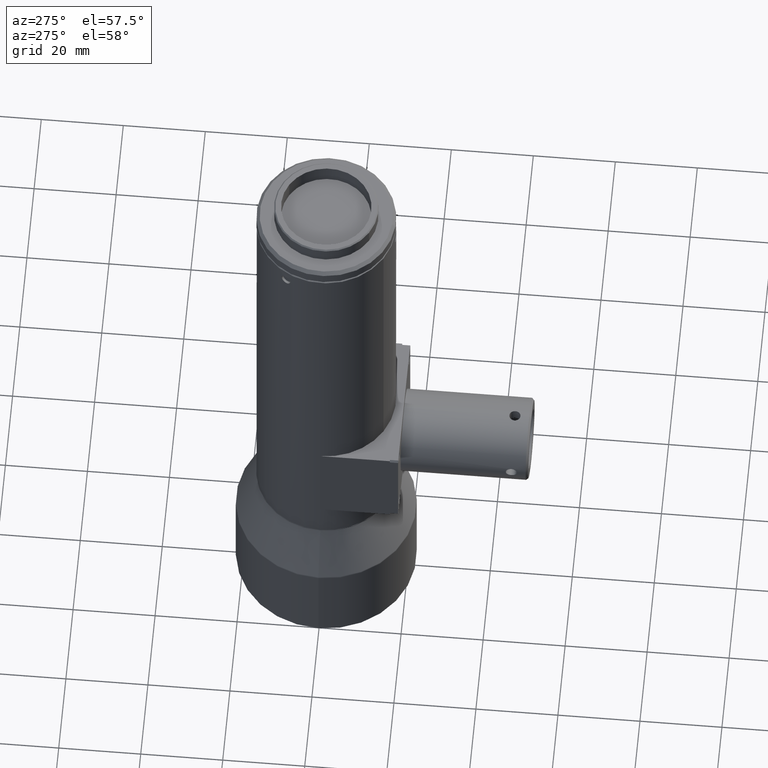
[diagram: clean part render]
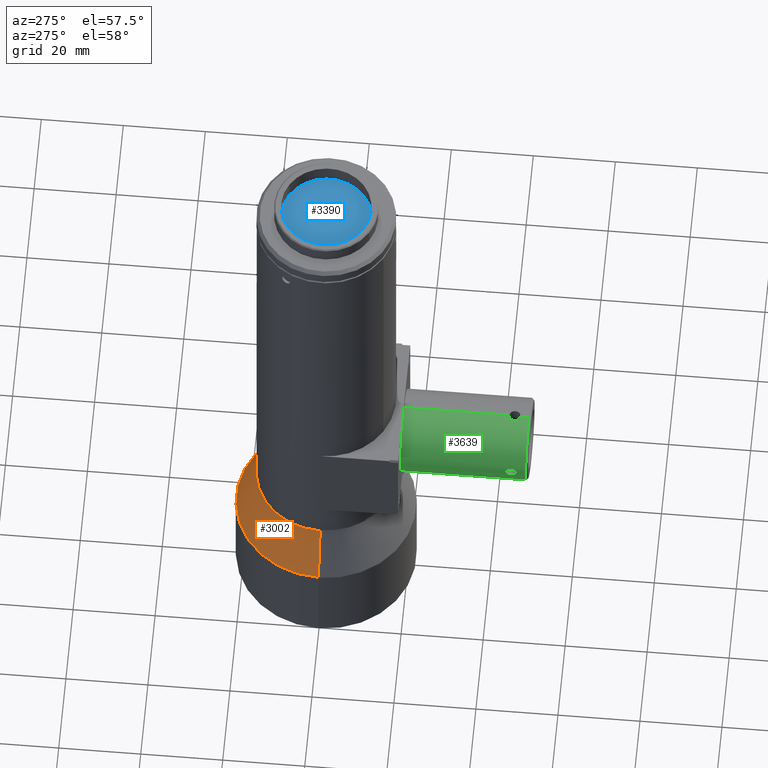
[diagram: same view with three faces highlighted in distinct colors, each labeled with its STEP entity id]
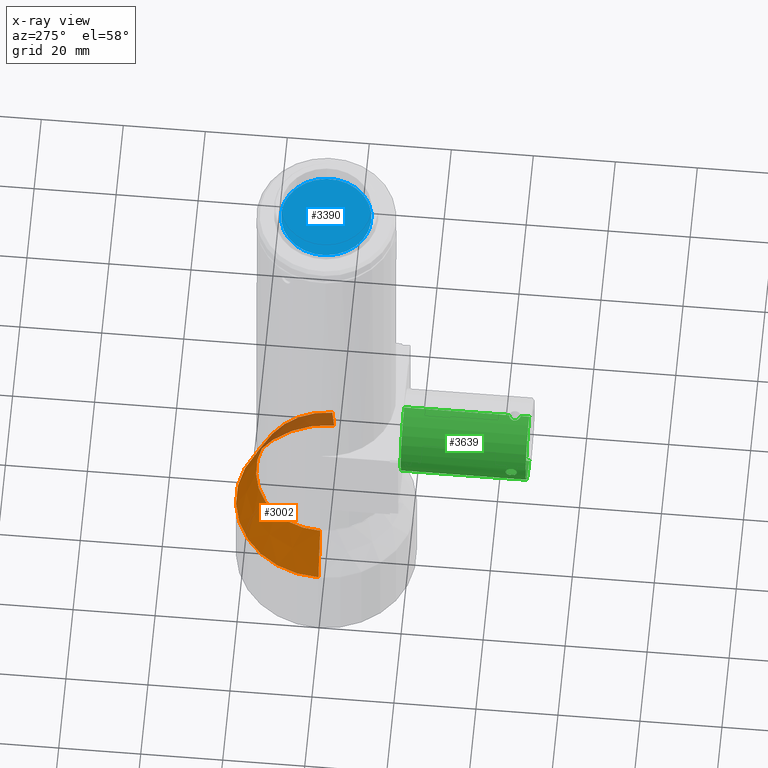
[diagram: x-ray of the same camera — body ghosted, the three highlighted faces saturated]
A machine part, auxiliary view with three faces highlighted in distinct colors.
The next image is the same camera in x-ray (body ghosted, the three faces saturated) — at least one of them is partly hidden behind the body in this view.
Their STEP definitions:

[orange] entity #3002 — the highlighted conical surface has half-angle 20 deg.
#106 = ORIENTED_EDGE ( 'NONE', *, *, #4367, .T. ) ;
#586 = ORIENTED_EDGE ( 'NONE', *, *, #1093, .T. ) ;
#696 = CARTESIAN_POINT ( 'NONE',  ( 2.879054872466911500E-014, -2.294736910271174700E-014, 46.45561534009365100 ) ) ;
#710 = AXIS2_PLACEMENT_3D ( 'NONE', #4957, #4095, #1353 ) ;
#719 = DIRECTION ( 'NONE',  ( -7.861355739480307100E-016, 5.318304654131179000E-016, -1.000000000000000000 ) ) ;
#1093 = EDGE_CURVE ( 'NONE', #3508, #4674, #3331, .T. ) ;
#1246 = CARTESIAN_POINT ( 'NONE',  ( 1.825161461339451500E-014, -1.581764947278964700E-014, 33.04961456805468600 ) ) ;
#1353 = DIRECTION ( 'NONE',  ( -1.000000000000000000, -1.665334536937734800E-016, 6.308085367188389300E-016 ) ) ;
#1424 = CARTESIAN_POINT ( 'NONE',  ( -17.06030737921405900, -2.578848101164963800E-014, 46.45561534009366500 ) ) ;
#1447 = VERTEX_POINT ( 'NONE', #3785 ) ;
#1451 = AXIS2_PLACEMENT_3D ( 'NONE', #696, #719, #5173 ) ;
#2124 = VECTOR ( 'NONE', #2206, 1000.000000000000000 ) ;
#2206 = DIRECTION ( 'NONE',  ( -0.3420201433256640500, 4.427993681569810400E-016, -0.9396926207859100900 ) ) ;
#2311 = CARTESIAN_POINT ( 'NONE',  ( 17.06030737921411600, -1.801697211133140400E-014, 46.45561534009363700 ) ) ;
#2591 = ORIENTED_EDGE ( 'NONE', *, *, #3948, .T. ) ;
#2870 = EDGE_CURVE ( 'NONE', #5083, #1447, #4670, .T. ) ;
#2962 = FACE_OUTER_BOUND ( 'NONE', #5200, .T. ) ;
#3002 = ADVANCED_FACE ( 'NONE', ( #2962 ), #4880, .T. ) ;
#3237 = CARTESIAN_POINT ( 'NONE',  ( 21.93969262078593400, -9.477119253438143600E-015, 33.04961456805467200 ) ) ;
#3331 = LINE ( 'NONE', #5569, #5372 ) ;
#3508 = VERTEX_POINT ( 'NONE', #2311 ) ;
#3637 = CIRCLE ( 'NONE', #1451, 17.06030737921408800 ) ;
#3785 = CARTESIAN_POINT ( 'NONE',  ( -21.93969262078589500, -1.947134225790892200E-014, 33.04961456805470000 ) ) ;
#3856 = CIRCLE ( 'NONE', #3859, 21.93969262078591200 ) ;
#3859 = AXIS2_PLACEMENT_3D ( 'NONE', #1246, #5236, #3922 ) ;
#3922 = DIRECTION ( 'NONE',  ( 1.000000000000000000, 1.665334536937735100E-016, -6.325424903476762100E-016 ) ) ;
#3948 = EDGE_CURVE ( 'NONE', #4674, #1447, #3856, .T. ) ;
#4095 = DIRECTION ( 'NONE',  ( -7.861355739480307100E-016, 5.318304654131179000E-016, -1.000000000000000000 ) ) ;
#4229 = DIRECTION ( 'NONE',  ( 0.3420201433256626100, 5.986003469354745100E-016, -0.9396926207859105400 ) ) ;
#4367 = EDGE_CURVE ( 'NONE', #5083, #3508, #3637, .T. ) ;
#4670 = LINE ( 'NONE', #5263, #2124 ) ;
#4674 = VERTEX_POINT ( 'NONE', #3237 ) ;
#4880 = CONICAL_SURFACE ( 'NONE', #710, 22.00000000000000000, 0.3490658503988601200 ) ;
#4957 = CARTESIAN_POINT ( 'NONE',  ( 1.812135732390119000E-014, -1.572952880099917700E-014, 32.88392140543749800 ) ) ;
#5083 = VERTEX_POINT ( 'NONE', #1424 ) ;
#5173 = DIRECTION ( 'NONE',  ( -1.000000000000000000, -1.665334536937734300E-016, 8.134547343925851600E-016 ) ) ;
#5200 = EDGE_LOOP ( 'NONE', ( #106, #586, #2591, #5381 ) ) ;
#5236 = DIRECTION ( 'NONE',  ( 7.861355739480307100E-016, -5.318304654131179000E-016, 1.000000000000000000 ) ) ;
#5263 = CARTESIAN_POINT ( 'NONE',  ( -21.99999999999998200, -1.939326478226219300E-014, 32.88392140543751200 ) ) ;
#5372 = VECTOR ( 'NONE', #4229, 1000.000000000000200 ) ;
#5381 = ORIENTED_EDGE ( 'NONE', *, *, #2870, .F. ) ;
#5569 = CARTESIAN_POINT ( 'NONE',  ( 22.00000000000001800, -9.371569861611983800E-015, 32.88392140543748400 ) ) ;

[blue] entity #3390 — the highlighted planar face has unit normal (0, -0, -1).
#72 = ORIENTED_EDGE ( 'NONE', *, *, #5106, .T. ) ;
#159 = AXIS2_PLACEMENT_3D ( 'NONE', #4597, #1976, #1439 ) ;
#299 = DIRECTION ( 'NONE',  ( 8.881784197001249400E-016, 1.000000000000000000, 0.0000000000000000000 ) ) ;
#687 = EDGE_CURVE ( 'NONE', #2706, #5742, #2590, .T. ) ;
#726 = CARTESIAN_POINT ( 'NONE',  ( 7.620559301051589700E-014, -7.495627580333608500E-014, 161.6013085027108800 ) ) ;
#1078 = EDGE_LOOP ( 'NONE', ( #5425, #72 ) ) ;
#1325 = PLANE ( 'NONE',  #2363 ) ;
#1439 = DIRECTION ( 'NONE',  ( -3.552713678800500900E-015, 1.000000000000000000, 0.0000000000000000000 ) ) ;
#1976 = DIRECTION ( 'NONE',  ( 0.0000000000000000000, 2.040786258924076600E-017, 1.000000000000000000 ) ) ;
#2179 = DIRECTION ( 'NONE',  ( 0.0000000000000000000, -2.040786258924076600E-017, -1.000000000000000000 ) ) ;
#2363 = AXIS2_PLACEMENT_3D ( 'NONE', #2700, #2179, #4426 ) ;
#2590 = CIRCLE ( 'NONE', #2799, 11.00000000000000000 ) ;
#2700 = CARTESIAN_POINT ( 'NONE',  ( 0.0000000000000000000, -16.39176184365495500, 161.6013085027108800 ) ) ;
#2706 = VERTEX_POINT ( 'NONE', #2954 ) ;
#2799 = AXIS2_PLACEMENT_3D ( 'NONE', #726, #5543, #299 ) ;
#2954 = CARTESIAN_POINT ( 'NONE',  ( -5.533477653427638600, -9.506872517238123900, 161.6013085027108800 ) ) ;
#3390 = ADVANCED_FACE ( 'NONE', ( #5151 ), #1325, .F. ) ;
#3454 = CARTESIAN_POINT ( 'NONE',  ( 5.533477653427791400, 9.506872517237974700, 161.6013085027108800 ) ) ;
#4426 = DIRECTION ( 'NONE',  ( 0.0000000000000000000, 1.000000000000000000, -2.040786258924076600E-017 ) ) ;
#4597 = CARTESIAN_POINT ( 'NONE',  ( 7.620559301051589700E-014, -7.495627580333608500E-014, 161.6013085027108800 ) ) ;
#5106 = EDGE_CURVE ( 'NONE', #5742, #2706, #5401, .T. ) ;
#5151 = FACE_OUTER_BOUND ( 'NONE', #1078, .T. ) ;
#5401 = CIRCLE ( 'NONE', #159, 11.00000000000000000 ) ;
#5425 = ORIENTED_EDGE ( 'NONE', *, *, #687, .T. ) ;
#5543 = DIRECTION ( 'NONE',  ( 0.0000000000000000000, 2.040786258924076600E-017, 1.000000000000000000 ) ) ;
#5742 = VERTEX_POINT ( 'NONE', #3454 ) ;

[green] entity #3639 — the highlighted cylindrical surface (partial cylindrical patch) has radius 10 mm, axis along (0, 1, 0).
#4 = CARTESIAN_POINT ( 'NONE',  ( -0.08815890712094269500, -44.65000000000004100, 78.12130850271086000 ) ) ;
#9 = VECTOR ( 'NONE', #3575, 1000.000000000000000 ) ;
#41 = VERTEX_POINT ( 'NONE', #2394 ) ;
#64 = EDGE_CURVE ( 'NONE', #3801, #4643, #5565, .T. ) ;
#98 = CARTESIAN_POINT ( 'NONE',  ( -9.931257433636060800, -45.32344812749356300, 66.94974685236024900 ) ) ;
#121 = CARTESIAN_POINT ( 'NONE',  ( -9.942326928710773600, -45.17676675212435800, 67.04773216338688300 ) ) ;
#161 = CARTESIAN_POINT ( 'NONE',  ( -9.926212530224605100, -45.40095403121574700, 66.90826582640693200 ) ) ;
#167 = FACE_BOUND ( 'NONE', #3583, .T. ) ;
#171 = VERTEX_POINT ( 'NONE', #2903 ) ;
#326 = CARTESIAN_POINT ( 'NONE',  ( -9.982333251452914200, -47.21268814672836100, 68.72107524362510800 ) ) ;
#365 = CARTESIAN_POINT ( 'NONE',  ( -10.00001659765900000, -47.35012294565140700, 67.94375533295695400 ) ) ;
#396 = CARTESIAN_POINT ( 'NONE',  ( -0.5990502112833072700, -44.78695931959274600, 58.13893223282578800 ) ) ;
#535 = CARTESIAN_POINT ( 'NONE',  ( 5.275837449498095100E-014, -47.35000000000003700, 78.12130850271083200 ) ) ;
#540 = CARTESIAN_POINT ( 'NONE',  ( -9.998804735169276400, -44.65877338454559000, 68.29853984063537100 ) ) ;
#557 = CARTESIAN_POINT ( 'NONE',  ( -9.966280983512906000, -44.92084173394700700, 67.29132874702772000 ) ) ;
#581 = CARTESIAN_POINT ( 'NONE',  ( -9.914290527129958600, -45.64906954148106200, 69.42788712286150600 ) ) ;
#609 = DIRECTION ( 'NONE',  ( 2.775557561561829800E-017, 1.000000000000000000, 6.540723362686794100E-016 ) ) ;
#621 = VERTEX_POINT ( 'NONE', #5057 ) ;
#684 = CARTESIAN_POINT ( 'NONE',  ( -0.8232392934222228000, -47.07357176913555500, 78.08763613142836800 ) ) ;
#780 = CARTESIAN_POINT ( 'NONE',  ( -1.341226813722805400, -46.17722976532515800, 58.21164585089898200 ) ) ;
#801 = CARTESIAN_POINT ( 'NONE',  ( -9.977425576481266500, -47.17212879070964200, 67.44573772639634500 ) ) ;
#815 = CARTESIAN_POINT ( 'NONE',  ( -1.079164140735045200, -45.17002776478636900, 58.17892371894218700 ) ) ;
#821 = VERTEX_POINT ( 'NONE', #3212 ) ;
#845 = VECTOR ( 'NONE', #2784, 1000.000000000000000 ) ;
#877 = ORIENTED_EDGE ( 'NONE', *, *, #4693, .F. ) ;
#915 = CARTESIAN_POINT ( 'NONE',  ( 5.251030751931963300E-014, -50.00000000000003600, 78.12130850271081800 ) ) ;
#946 = EDGE_CURVE ( 'NONE', #171, #5066, #5335, .T. ) ;
#1007 = CARTESIAN_POINT ( 'NONE',  ( -9.908455984662760200, -46.00000000000003600, 66.77130850271088000 ) ) ;
#1036 = DIRECTION ( 'NONE',  ( -7.927686285214007400E-016, 6.938893903907227400E-016, -1.000000000000000000 ) ) ;
#1043 = CARTESIAN_POINT ( 'NONE',  ( -9.999991186617945600, -44.65006528431557300, 67.94448073131485400 ) ) ;
#1176 = EDGE_CURVE ( 'NONE', #5323, #621, #3578, .T. ) ;
#1184 = AXIS2_PLACEMENT_3D ( 'NONE', #3273, #1502, #1036 ) ;
#1193 = CARTESIAN_POINT ( 'NONE',  ( -1.080561915911132200, -46.82860554338874700, 58.17905625841725500 ) ) ;
#1198 = CARTESIAN_POINT ( 'NONE',  ( -9.966289370775543300, -47.07321586123912000, 68.94500175176096900 ) ) ;
#1216 = CARTESIAN_POINT ( 'NONE',  ( -1.179706773769800600, -45.32050852034087300, 58.19090573933117100 ) ) ;
#1231 = CARTESIAN_POINT ( 'NONE',  ( -1.306705913702195000, -46.35045600388916400, 58.20703480799878800 ) ) ;
#1431 = CARTESIAN_POINT ( 'NONE',  ( -9.948387082483416000, -45.10739873227832000, 67.10469637590428200 ) ) ;
#1471 = CARTESIAN_POINT ( 'NONE',  ( -9.909671398771474000, -45.82228460391142700, 69.46247110110978400 ) ) ;
#1502 = DIRECTION ( 'NONE',  ( -2.775557561561829800E-017, -1.000000000000000000, -6.540723362686794100E-016 ) ) ;
#1564 = B_SPLINE_CURVE_WITH_KNOTS ( 'NONE', 3,
 ( #1007, #5393, #2771, #161, #98, #121, #1431, #557, #3221, #3263, #1043, #4548, #540, #3667, #4100, #3706, #4161, #1912, #2362, #5435, #581, #1471, #4566, #5018 ),
 .UNSPECIFIED., .F., .F.,
 ( 4, 2, 2, 2, 2, 2, 2, 2, 2, 2, 2, 4 ),
 ( 0.0000000000000000000, 0.0005281919750799807500, 0.0007922879626199615200, 0.001056383950159942400, 0.001584575925239903700, 0.002112767900319865300, 0.002376863887859825500, 0.002640959875399784800, 0.003169151850479751600, 0.003697343825559717000, 0.003961439813099700200, 0.004225535800639682900 ),
 .UNSPECIFIED. ) ;
#1579 = VERTEX_POINT ( 'NONE', #5641 ) ;
#1636 = DIRECTION ( 'NONE',  ( 2.775557561561829800E-017, 1.000000000000000000, 6.540723362686794100E-016 ) ) ;
#1641 = CARTESIAN_POINT ( 'NONE',  ( -0.3509318172537193000, -47.30657831387669200, 58.12709251971594400 ) ) ;
#1645 = CARTESIAN_POINT ( 'NONE',  ( -9.960238477221697200, -47.01621404793294100, 69.01436549630881200 ) ) ;
#1679 = CARTESIAN_POINT ( 'NONE',  ( -1.179580327708864800, -46.68002535371906700, 58.19088807225784900 ) ) ;
#1693 = CARTESIAN_POINT ( 'NONE',  ( -9.908455984662744200, -46.00000000000003600, 69.47130850271088300 ) ) ;
#1700 = CARTESIAN_POINT ( 'NONE',  ( -0.6802354321877107600, -47.17943817229473100, 58.14312932836288900 ) ) ;
#1703 = CARTESIAN_POINT ( 'NONE',  ( -9.908455984662744200, -46.00000000000003600, 69.47130850271088300 ) ) ;
#1746 = CARTESIAN_POINT ( 'NONE',  ( -1.080561915911118400, -45.17139445661133100, 78.06356074700438800 ) ) ;
#1769 = CARTESIAN_POINT ( 'NONE',  ( -0.4350950808563413000, -44.71897855912485700, 78.11217369248612400 ) ) ;
#1887 = LINE ( 'NONE', #915, #9 ) ;
#1912 = CARTESIAN_POINT ( 'NONE',  ( -9.942266754774744100, -45.17122329862677800, 69.20173931932096400 ) ) ;
#1925 = CARTESIAN_POINT ( 'NONE',  ( 4.459649902191343200E-014, -49.50000000000001400, 68.12130850271081800 ) ) ;
#1966 = EDGE_CURVE ( 'NONE', #5323, #5066, #5162, .T. ) ;
#1987 = AXIS2_PLACEMENT_3D ( 'NONE', #1925, #5505, #3751 ) ;
#2045 = FACE_OUTER_BOUND ( 'NONE', #2270, .T. ) ;
#2082 = CARTESIAN_POINT ( 'NONE',  ( -0.3509318172537058100, -44.69342168612339300, 78.11552448570574800 ) ) ;
#2092 = CARTESIAN_POINT ( 'NONE',  ( -0.6765570802951345100, -47.17155870310527600, 78.09866686323266500 ) ) ;
#2095 = ORIENTED_EDGE ( 'NONE', *, *, #5658, .T. ) ;
#2121 = CARTESIAN_POINT ( 'NONE',  ( -0.6765570802951553800, -44.82844129689480900, 58.14395014218899100 ) ) ;
#2123 = CARTESIAN_POINT ( 'NONE',  ( -9.908455984662758500, -46.17857184901675500, 66.77130850271088000 ) ) ;
#2141 = CARTESIAN_POINT ( 'NONE',  ( -0.8287844255426656300, -47.08042472048264700, 58.15490944792397000 ) ) ;
#2155 = CARTESIAN_POINT ( 'NONE',  ( -1.281173421834171500, -46.43466161665177300, 58.20365960884719000 ) ) ;
#2221 = CARTESIAN_POINT ( 'NONE',  ( 5.265879987279950000E-014, -44.65000000000003400, 78.12130850271083200 ) ) ;
#2270 = EDGE_LOOP ( 'NONE', ( #877, #5707, #4206, #3694, #5011, #5252, #2822, #3453 ) ) ;
#2356 = DIRECTION ( 'NONE',  ( 2.775557561561829800E-017, 1.000000000000000000, 6.540723362686794100E-016 ) ) ;
#2362 = CARTESIAN_POINT ( 'NONE',  ( -9.930436911879137800, -45.31977029931331900, 69.30074959783947000 ) ) ;
#2394 = CARTESIAN_POINT ( 'NONE',  ( 3.831673206398495200E-014, -49.50000000000000700, 58.12130850271081800 ) ) ;
#2489 = CARTESIAN_POINT ( 'NONE',  ( 5.294745783526561800E-014, -49.50000000000002100, 78.12130850271081800 ) ) ;
#2527 = CARTESIAN_POINT ( 'NONE',  ( 3.365941247523353600E-014, -44.65000000000002700, 58.12130850271083200 ) ) ;
#2557 = CARTESIAN_POINT ( 'NONE',  ( -9.960357302555996400, -47.01737016555806300, 67.22957511241330100 ) ) ;
#2569 = CARTESIAN_POINT ( 'NONE',  ( -1.350032571455851200, -46.08766371272368200, 58.21285695581940400 ) ) ;
#2586 = CARTESIAN_POINT ( 'NONE',  ( -9.942339192029138000, -46.82943986021285800, 69.20089020800759300 ) ) ;
#2603 = CARTESIAN_POINT ( 'NONE',  ( 3.795313404735972100E-014, -47.35000000000002300, 58.12130850271081800 ) ) ;
#2630 = CARTESIAN_POINT ( 'NONE',  ( -0.8287844255426528600, -44.91957527951741000, 78.08770755749766600 ) ) ;
#2672 = CARTESIAN_POINT ( 'NONE',  ( -0.1786147244998720900, -47.35000000000005100, 78.12130850271086000 ) ) ;
#2771 = CARTESIAN_POINT ( 'NONE',  ( -9.913429295154660500, -45.64613010845376100, 66.80654976862238900 ) ) ;
#2784 = DIRECTION ( 'NONE',  ( 2.775557561561829800E-017, 1.000000000000000000, 6.540723362686794100E-016 ) ) ;
#2822 = ORIENTED_EDGE ( 'NONE', *, *, #1966, .F. ) ;
#2833 = EDGE_CURVE ( 'NONE', #4643, #1579, #2957, .T. ) ;
#2841 = CARTESIAN_POINT ( 'NONE',  ( -0.8926077846878933700, -47.01660642885193700, 78.08158731158486900 ) ) ;
#2882 = CYLINDRICAL_SURFACE ( 'NONE', #3186, 9.999999999999994700 ) ;
#2890 = CARTESIAN_POINT ( 'NONE',  ( -1.349934579126281100, -46.17682792245619100, 78.02977340078793100 ) ) ;
#2903 = CARTESIAN_POINT ( 'NONE',  ( 5.294745783526564300E-014, -19.00000000000003900, 78.12130850271084600 ) ) ;
#2907 = CARTESIAN_POINT ( 'NONE',  ( 3.787958174803896100E-014, -50.00000000000002100, 58.12130850271081800 ) ) ;
#2957 = B_SPLINE_CURVE_WITH_KNOTS ( 'NONE', 3,
 ( #3272, #2672, #3083, #4012, #2092, #684, #2841, #5247, #3077, #3217, #2890, #4727, #5251, #3421, #3762, #2985, #1746, #2630, #5472, #1769, #2082, #3539, #4, #2221 ),
 .UNSPECIFIED., .F., .F.,
 ( 4, 2, 2, 2, 2, 2, 2, 2, 2, 2, 2, 4 ),
 ( 1.695661540455441700E-019, 0.0005281923293665231200, 0.0007922884940497885300, 0.001056384658733053800, 0.001584576988099573600, 0.002112769317466092900, 0.002376865482149341900, 0.002640961646832591200, 0.003169153976199088200, 0.003697346305565585200, 0.003961442470248834600, 0.004225538634932083500 ),
 .UNSPECIFIED. ) ;
#2985 = CARTESIAN_POINT ( 'NONE',  ( -1.179580327708850100, -45.31997464628100400, 78.05172893316385800 ) ) ;
#2994 = CARTESIAN_POINT ( 'NONE',  ( -9.995109691726156600, -47.31499886037988000, 67.76838230298815800 ) ) ;
#3017 = CIRCLE ( 'NONE', #1987, 10.00000000000000200 ) ;
#3036 = CARTESIAN_POINT ( 'NONE',  ( -9.995051687709803900, -47.31457211007963800, 68.47589404428008200 ) ) ;
#3065 = CARTESIAN_POINT ( 'NONE',  ( -1.349934579126298000, -45.82317207754389400, 58.21284360463374700 ) ) ;
#3077 = CARTESIAN_POINT ( 'NONE',  ( -1.179706773769780200, -46.67949147965923400, 78.05171126609049300 ) ) ;
#3083 = CARTESIAN_POINT ( 'NONE',  ( -0.3538706151889867700, -47.31475890548495800, 78.11638550013887500 ) ) ;
#3130 = CARTESIAN_POINT ( 'NONE',  ( 3.831673206398495900E-014, -19.00000000000002500, 58.12130850271084600 ) ) ;
#3186 = AXIS2_PLACEMENT_3D ( 'NONE', #5442, #609, #3738 ) ;
#3212 = CARTESIAN_POINT ( 'NONE',  ( -9.908455984662760200, -46.00000000000003600, 66.77130850271088000 ) ) ;
#3217 = CARTESIAN_POINT ( 'NONE',  ( -1.314398539117332700, -46.35464520774141300, 78.03478234367001700 ) ) ;
#3221 = CARTESIAN_POINT ( 'NONE',  ( -9.978213116302177000, -44.82029583153747900, 67.44181181623156400 ) ) ;
#3263 = CARTESIAN_POINT ( 'NONE',  ( -9.995032719430533100, -44.68560128072567700, 67.76666265289137000 ) ) ;
#3272 = CARTESIAN_POINT ( 'NONE',  ( 5.275837449498095100E-014, -47.35000000000003700, 78.12130850271083200 ) ) ;
#3273 = CARTESIAN_POINT ( 'NONE',  ( 4.544304407818978600E-014, -19.00000000000003200, 68.12130850271084600 ) ) ;
#3321 = EDGE_CURVE ( 'NONE', #5397, #821, #4288, .T. ) ;
#3348 = CARTESIAN_POINT ( 'NONE',  ( 3.787958174803896100E-014, -50.00000000000002100, 58.12130850271081800 ) ) ;
#3421 = CARTESIAN_POINT ( 'NONE',  ( -1.306705913702181500, -45.64954399611090000, 78.03558219742286900 ) ) ;
#3453 = ORIENTED_EDGE ( 'NONE', *, *, #1176, .T. ) ;
#3478 = CARTESIAN_POINT ( 'NONE',  ( -9.982436474247901300, -47.21353369367565000, 67.52326527632440900 ) ) ;
#3515 = CARTESIAN_POINT ( 'NONE',  ( 3.365941247523353600E-014, -44.65000000000002700, 58.12130850271083200 ) ) ;
#3539 = CARTESIAN_POINT ( 'NONE',  ( -0.1777150660403264400, -44.65883730071407600, 78.12010461076374700 ) ) ;
#3575 = DIRECTION ( 'NONE',  ( 2.775557561561829800E-017, 1.000000000000000000, 6.540723362686794100E-016 ) ) ;
#3578 = B_SPLINE_CURVE_WITH_KNOTS ( 'NONE', 3,
 ( #3515, #4813, #3873, #396, #2121, #4766, #5201, #815, #1216, #5255, #3065, #2569, #780, #1231, #2155, #1679, #1193, #2141, #1700, #4789, #1641, #4737, #5239, #2603 ),
 .UNSPECIFIED., .F., .F.,
 ( 4, 2, 2, 2, 2, 2, 2, 2, 2, 2, 2, 4 ),
 ( 3.959069353771472200E-019, 0.0005281923293664932000, 0.0007922884940497431100, 0.001056384658732993100, 0.001584576988099494500, 0.002112769317465996200, 0.002376865482149257300, 0.002640961646832517900, 0.003169153976199040900, 0.003697346305565564400, 0.003961442470248825000, 0.004225538634932086100 ),
 .UNSPECIFIED. ) ;
#3583 = EDGE_LOOP ( 'NONE', ( #2095, #5332 ) ) ;
#3639 = ADVANCED_FACE ( 'NONE', ( #2045, #167 ), #2882, .T. ) ;
#3643 = EDGE_CURVE ( 'NONE', #41, #3801, #3017, .T. ) ;
#3667 = CARTESIAN_POINT ( 'NONE',  ( -9.994232656792888700, -44.69329456262512000, 68.47176631911773400 ) ) ;
#3694 = ORIENTED_EDGE ( 'NONE', *, *, #2833, .T. ) ;
#3706 = CARTESIAN_POINT ( 'NONE',  ( -9.978195614039718100, -44.82042232035524900, 68.80133899869203200 ) ) ;
#3738 = DIRECTION ( 'NONE',  ( 7.927686285214012400E-016, -6.938893903907232300E-016, 1.000000000000000000 ) ) ;
#3751 = DIRECTION ( 'NONE',  ( -7.927686285214007400E-016, 6.938893903907227400E-016, -1.000000000000000000 ) ) ;
#3762 = CARTESIAN_POINT ( 'NONE',  ( -1.281173421834156600, -45.56533838334830500, 78.03895739657448900 ) ) ;
#3801 = VERTEX_POINT ( 'NONE', #2489 ) ;
#3873 = CARTESIAN_POINT ( 'NONE',  ( -0.3538706151890083600, -44.68524109451509900, 58.12623150528277400 ) ) ;
#3910 = CARTESIAN_POINT ( 'NONE',  ( -9.930369324991223900, -46.67901508477869000, 69.30129329933375000 ) ) ;
#3930 = CARTESIAN_POINT ( 'NONE',  ( -9.942471297688547000, -46.83098335850109400, 67.04293536207224200 ) ) ;
#4012 = CARTESIAN_POINT ( 'NONE',  ( -0.5990502112832870600, -47.21304068040731700, 78.10368477259586900 ) ) ;
#4100 = CARTESIAN_POINT ( 'NONE',  ( -9.990884565774260700, -44.71882735191717700, 68.55597261469795000 ) ) ;
#4143 = CARTESIAN_POINT ( 'NONE',  ( 5.251030751931963300E-014, -50.00000000000003600, 78.12130850271081800 ) ) ;
#4161 = CARTESIAN_POINT ( 'NONE',  ( -9.966413670740186200, -44.91944271139527000, 68.94992030341308000 ) ) ;
#4206 = ORIENTED_EDGE ( 'NONE', *, *, #64, .T. ) ;
#4288 = B_SPLINE_CURVE_WITH_KNOTS ( 'NONE', 3,
 ( #1703, #5222, #5204, #3910, #2586, #1645, #1198, #5168, #326, #3036, #4719, #365, #2994, #3478, #801, #5667, #2557, #3930, #4303, #4356, #2123, #4793 ),
 .UNSPECIFIED., .F., .F.,
 ( 4, 2, 2, 2, 2, 2, 2, 2, 2, 2, 4 ),
 ( 0.004225535800639682900, 0.004753600023746459800, 0.005281664246853235900, 0.005545696358406638700, 0.005809728469960041500, 0.006337792693066847000, 0.006865856916173652600, 0.007129889027727055400, 0.007393921139280458200, 0.007921985362387293200, 0.008450049585494130000 ),
 .UNSPECIFIED. ) ;
#4303 = CARTESIAN_POINT ( 'NONE',  ( -9.930481495076326900, -46.68061645414715600, 66.94225627105973300 ) ) ;
#4317 = LINE ( 'NONE', #2907, #5207 ) ;
#4356 = CARTESIAN_POINT ( 'NONE',  ( -9.913523216168670200, -46.35597554848294500, 66.80727489145900200 ) ) ;
#4548 = CARTESIAN_POINT ( 'NONE',  ( -10.00000438800686100, -44.64996749624302200, 68.20897370753179700 ) ) ;
#4566 = CARTESIAN_POINT ( 'NONE',  ( -9.908455984662744200, -45.91184110005036700, 69.47130850271088300 ) ) ;
#4643 = VERTEX_POINT ( 'NONE', #535 ) ;
#4693 = EDGE_CURVE ( 'NONE', #41, #621, #4317, .T. ) ;
#4719 = CARTESIAN_POINT ( 'NONE',  ( -9.999983315412997300, -47.34987641043809200, 68.30072637530690800 ) ) ;
#4727 = CARTESIAN_POINT ( 'NONE',  ( -1.350032571455836100, -45.91233628727640300, 78.02976004960223100 ) ) ;
#4737 = CARTESIAN_POINT ( 'NONE',  ( -0.1777150660403401800, -47.34116269928600900, 58.12251239465793200 ) ) ;
#4766 = CARTESIAN_POINT ( 'NONE',  ( -0.8232392934222423400, -44.92642823086449500, 58.15498087399327400 ) ) ;
#4789 = CARTESIAN_POINT ( 'NONE',  ( -0.4350950808563564000, -47.28102144087521500, 58.13044331293555400 ) ) ;
#4793 = CARTESIAN_POINT ( 'NONE',  ( -9.908455984662760200, -46.00000000000003600, 66.77130850271088000 ) ) ;
#4813 = CARTESIAN_POINT ( 'NONE',  ( -0.1786147244998913000, -44.65000000000002000, 58.12130850271083200 ) ) ;
#5011 = ORIENTED_EDGE ( 'NONE', *, *, #5067, .T. ) ;
#5018 = CARTESIAN_POINT ( 'NONE',  ( -9.908455984662744200, -46.00000000000003600, 69.47130850271088300 ) ) ;
#5024 = VECTOR ( 'NONE', #1636, 1000.000000000000000 ) ;
#5057 = CARTESIAN_POINT ( 'NONE',  ( 3.795313404735972100E-014, -47.35000000000002300, 58.12130850271081800 ) ) ;
#5066 = VERTEX_POINT ( 'NONE', #3130 ) ;
#5067 = EDGE_CURVE ( 'NONE', #1579, #171, #1887, .T. ) ;
#5162 = LINE ( 'NONE', #3348, #5024 ) ;
#5168 = CARTESIAN_POINT ( 'NONE',  ( -9.977313014683936400, -47.17117183016117800, 68.79852294259143300 ) ) ;
#5201 = CARTESIAN_POINT ( 'NONE',  ( -0.8926077846879187900, -44.98339357114815600, 58.16102969383679500 ) ) ;
#5204 = CARTESIAN_POINT ( 'NONE',  ( -9.913452256154952700, -46.35406523367046800, 69.43586676156590400 ) ) ;
#5207 = VECTOR ( 'NONE', #2356, 1000.000000000000000 ) ;
#5222 = CARTESIAN_POINT ( 'NONE',  ( -9.908455984662746000, -46.17627515452058200, 69.47130850271089700 ) ) ;
#5239 = CARTESIAN_POINT ( 'NONE',  ( -0.08815890712095654500, -47.35000000000003000, 58.12130850271083900 ) ) ;
#5247 = CARTESIAN_POINT ( 'NONE',  ( -1.079164140735019900, -46.82997223521371000, 78.06369328647944900 ) ) ;
#5251 = CARTESIAN_POINT ( 'NONE',  ( -1.341226813722790700, -45.82277023467492700, 78.03097115452267500 ) ) ;
#5252 = ORIENTED_EDGE ( 'NONE', *, *, #946, .T. ) ;
#5255 = CARTESIAN_POINT ( 'NONE',  ( -1.314398539117351600, -45.64535479225867200, 58.20783466175161200 ) ) ;
#5323 = VERTEX_POINT ( 'NONE', #2527 ) ;
#5332 = ORIENTED_EDGE ( 'NONE', *, *, #3321, .T. ) ;
#5335 = CIRCLE ( 'NONE', #1184, 10.00000000000000200 ) ;
#5393 = CARTESIAN_POINT ( 'NONE',  ( -9.908455984662756700, -45.82138494997654000, 66.77130850271086600 ) ) ;
#5397 = VERTEX_POINT ( 'NONE', #1693 ) ;
#5435 = CARTESIAN_POINT ( 'NONE',  ( -9.917668414002614300, -45.56490740488138900, 69.40233069975376200 ) ) ;
#5442 = CARTESIAN_POINT ( 'NONE',  ( 4.458262123410562400E-014, -50.00000000000002800, 68.12130850271081800 ) ) ;
#5472 = CARTESIAN_POINT ( 'NONE',  ( -0.6802354321876954400, -44.82056182770533300, 78.09948767705874700 ) ) ;
#5505 = DIRECTION ( 'NONE',  ( 2.775557561561829800E-017, 1.000000000000000000, 6.540723362686794100E-016 ) ) ;
#5565 = LINE ( 'NONE', #4143, #845 ) ;
#5641 = CARTESIAN_POINT ( 'NONE',  ( 5.265879987279950000E-014, -44.65000000000003400, 78.12130850271083200 ) ) ;
#5658 = EDGE_CURVE ( 'NONE', #821, #5397, #1564, .T. ) ;
#5667 = CARTESIAN_POINT ( 'NONE',  ( -9.966400771888807200, -47.07424816206206200, 67.29895051367758200 ) ) ;
#5707 = ORIENTED_EDGE ( 'NONE', *, *, #3643, .T. ) ;